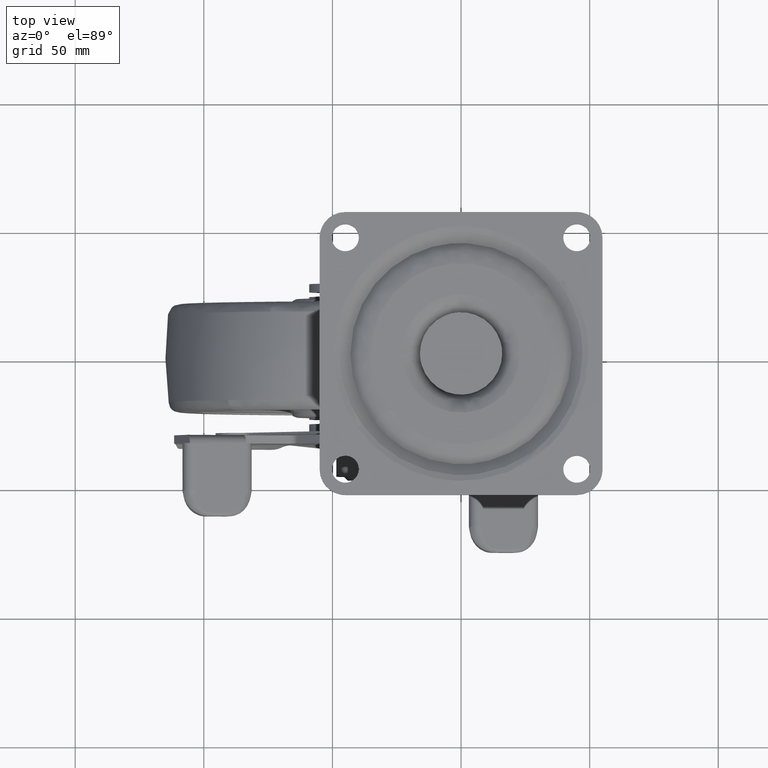
[diagram: clean part render]
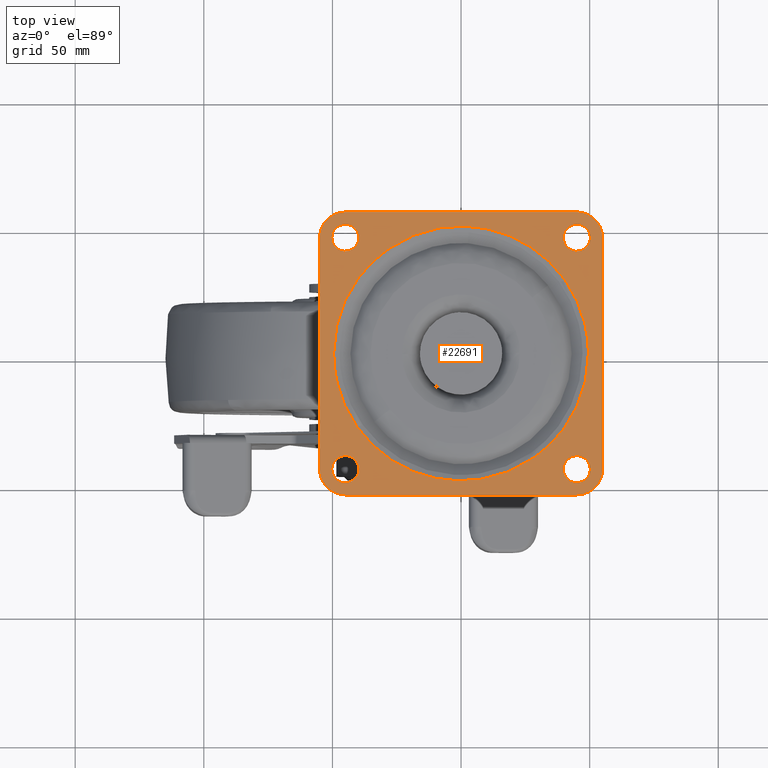
[diagram: same view with one face highlighted and labeled with its STEP entity id]
A machine part, top view. The second image highlights one B-rep face of the part: STEP entity #22691.
In plain terms, the highlighted face is a freeform B-spline surface patch.
Its self-contained STEP definition (entity closure, byte-faithful):
#21423=CARTESIAN_POINT('',(-45.320504832935832,39.759792308308313,-2.081668E-017));
#21424=VERTEX_POINT('',#21423);
#21430=CARTESIAN_POINT('',(-39.750000000000000,45.0,0.0));
#21431=VERTEX_POINT('',#21430);
#21432=CARTESIAN_POINT('',(-45.320504832935832,39.759792308308306,0.0));
#21433=CARTESIAN_POINT('',(-45.160402007507038,39.750000000000000,0.0));
#21434=CARTESIAN_POINT('',(-45.0,39.750000000000000,0.0));
#21435=CARTESIAN_POINT('',(-39.750000000000000,39.750000000000000,0.0));
#21436=CARTESIAN_POINT('',(-39.750000000000000,45.0,0.0));
#21444=(BOUNDED_CURVE()B_SPLINE_CURVE(2,(#21432,#21433,#21434,#21435,#21436),.UNSPECIFIED.,.F.,.U.)B_SPLINE_CURVE_WITH_KNOTS((3,2,3),(0.239332962229527,0.250000000000000,0.500000000000000),.UNSPECIFIED.)CURVE()GEOMETRIC_REPRESENTATION_ITEM()RATIONAL_B_SPLINE_CURVE((0.976072041646538,0.987502787888806,1.0,0.707106781186547,1.0))REPRESENTATION_ITEM(''));
#21445=EDGE_CURVE('',#21424,#21431,#21444,.T.);
#21447=CARTESIAN_POINT('',(-44.679495167064168,50.240207691691687,-2.081668E-017));
#21448=VERTEX_POINT('',#21447);
#21449=CARTESIAN_POINT('',(-39.750000000000000,45.0,0.0));
#21450=CARTESIAN_POINT('',(-39.749999999999993,49.938706850898129,0.0));
#21451=CARTESIAN_POINT('',(-44.679495167064168,50.240207691691687,0.0));
#21459=(BOUNDED_CURVE()B_SPLINE_CURVE(2,(#21449,#21450,#21451),.UNSPECIFIED.,.F.,.U.)B_SPLINE_CURVE_WITH_KNOTS((3,3),(0.500000000000000,0.739332962229527),.UNSPECIFIED.)CURVE()GEOMETRIC_REPRESENTATION_ITEM()RATIONAL_B_SPLINE_CURVE((1.0,0.719603993297741,0.976072041646538))REPRESENTATION_ITEM(''));
#21460=EDGE_CURVE('',#21431,#21448,#21459,.T.);
#21534=CARTESIAN_POINT('',(-50.249999999999993,45.0,0.0));
#21535=VERTEX_POINT('',#21534);
#21536=CARTESIAN_POINT('',(-44.679495167064168,50.240207691691687,0.0));
#21537=CARTESIAN_POINT('',(-44.839597992492962,50.249999999999993,0.0));
#21538=CARTESIAN_POINT('',(-45.0,50.249999999999993,0.0));
#21539=CARTESIAN_POINT('',(-50.249999999999986,50.249999999999986,0.0));
#21540=CARTESIAN_POINT('',(-50.249999999999993,45.0,0.0));
#21548=(BOUNDED_CURVE()B_SPLINE_CURVE(2,(#21536,#21537,#21538,#21539,#21540),.UNSPECIFIED.,.F.,.U.)B_SPLINE_CURVE_WITH_KNOTS((3,2,3),(0.739332962229527,0.750000000000000,1.0),.UNSPECIFIED.)CURVE()GEOMETRIC_REPRESENTATION_ITEM()RATIONAL_B_SPLINE_CURVE((0.976072041646538,0.987502787888806,1.0,0.707106781186547,1.0))REPRESENTATION_ITEM(''));
#21549=EDGE_CURVE('',#21448,#21535,#21548,.T.);
#21551=CARTESIAN_POINT('',(-50.249999999999993,45.0,0.0));
#21552=CARTESIAN_POINT('',(-50.249999999999993,40.061293149101857,0.0));
#21553=CARTESIAN_POINT('',(-45.320504832935804,39.759792308308299,0.0));
#21561=(BOUNDED_CURVE()B_SPLINE_CURVE(2,(#21551,#21552,#21553),.UNSPECIFIED.,.F.,.U.)B_SPLINE_CURVE_WITH_KNOTS((3,3),(0.0,0.239332962229527),.UNSPECIFIED.)CURVE()GEOMETRIC_REPRESENTATION_ITEM()RATIONAL_B_SPLINE_CURVE((1.0,0.719603993297741,0.976072041646539))REPRESENTATION_ITEM(''));
#21562=EDGE_CURVE('',#21535,#21424,#21561,.T.);
#21605=CARTESIAN_POINT('',(44.679495167064182,39.759792308308313,-2.081668E-017));
#21606=VERTEX_POINT('',#21605);
#21612=CARTESIAN_POINT('',(50.249999999999993,45.0,0.0));
#21613=VERTEX_POINT('',#21612);
#21614=CARTESIAN_POINT('',(44.679495167064175,39.759792308308306,0.0));
#21615=CARTESIAN_POINT('',(44.839597992492962,39.750000000000000,0.0));
#21616=CARTESIAN_POINT('',(45.0,39.750000000000000,0.0));
#21617=CARTESIAN_POINT('',(50.249999999999986,39.750000000000000,0.0));
#21618=CARTESIAN_POINT('',(50.249999999999993,45.0,0.0));
#21626=(BOUNDED_CURVE()B_SPLINE_CURVE(2,(#21614,#21615,#21616,#21617,#21618),.UNSPECIFIED.,.F.,.U.)B_SPLINE_CURVE_WITH_KNOTS((3,2,3),(0.239332962229527,0.250000000000000,0.500000000000000),.UNSPECIFIED.)CURVE()GEOMETRIC_REPRESENTATION_ITEM()RATIONAL_B_SPLINE_CURVE((0.976072041646538,0.987502787888806,1.0,0.707106781186547,1.0))REPRESENTATION_ITEM(''));
#21627=EDGE_CURVE('',#21606,#21613,#21626,.T.);
#21629=CARTESIAN_POINT('',(45.320504832935832,50.240207691691687,-2.081668E-017));
#21630=VERTEX_POINT('',#21629);
#21631=CARTESIAN_POINT('',(50.249999999999993,45.0,0.0));
#21632=CARTESIAN_POINT('',(50.249999999999993,49.938706850898129,0.0));
#21633=CARTESIAN_POINT('',(45.320504832935825,50.240207691691687,0.0));
#21641=(BOUNDED_CURVE()B_SPLINE_CURVE(2,(#21631,#21632,#21633),.UNSPECIFIED.,.F.,.U.)B_SPLINE_CURVE_WITH_KNOTS((3,3),(0.500000000000000,0.739332962229527),.UNSPECIFIED.)CURVE()GEOMETRIC_REPRESENTATION_ITEM()RATIONAL_B_SPLINE_CURVE((1.0,0.719603993297741,0.976072041646538))REPRESENTATION_ITEM(''));
#21642=EDGE_CURVE('',#21613,#21630,#21641,.T.);
#21716=CARTESIAN_POINT('',(39.750000000000000,45.0,0.0));
#21717=VERTEX_POINT('',#21716);
#21718=CARTESIAN_POINT('',(45.320504832935825,50.240207691691687,0.0));
#21719=CARTESIAN_POINT('',(45.160402007507038,50.249999999999993,0.0));
#21720=CARTESIAN_POINT('',(45.0,50.249999999999993,0.0));
#21721=CARTESIAN_POINT('',(39.750000000000000,50.249999999999986,0.0));
#21722=CARTESIAN_POINT('',(39.750000000000000,45.0,0.0));
#21730=(BOUNDED_CURVE()B_SPLINE_CURVE(2,(#21718,#21719,#21720,#21721,#21722),.UNSPECIFIED.,.F.,.U.)B_SPLINE_CURVE_WITH_KNOTS((3,2,3),(0.739332962229527,0.750000000000000,1.0),.UNSPECIFIED.)CURVE()GEOMETRIC_REPRESENTATION_ITEM()RATIONAL_B_SPLINE_CURVE((0.976072041646538,0.987502787888806,1.0,0.707106781186547,1.0))REPRESENTATION_ITEM(''));
#21731=EDGE_CURVE('',#21630,#21717,#21730,.T.);
#21733=CARTESIAN_POINT('',(39.750000000000000,45.0,0.0));
#21734=CARTESIAN_POINT('',(39.750000000000000,40.061293149101857,0.0));
#21735=CARTESIAN_POINT('',(44.679495167064175,39.759792308308299,0.0));
#21743=(BOUNDED_CURVE()B_SPLINE_CURVE(2,(#21733,#21734,#21735),.UNSPECIFIED.,.F.,.U.)B_SPLINE_CURVE_WITH_KNOTS((3,3),(0.0,0.239332962229527),.UNSPECIFIED.)CURVE()GEOMETRIC_REPRESENTATION_ITEM()RATIONAL_B_SPLINE_CURVE((1.0,0.719603993297741,0.976072041646539))REPRESENTATION_ITEM(''));
#21744=EDGE_CURVE('',#21717,#21606,#21743,.T.);
#21787=CARTESIAN_POINT('',(44.679495167064168,-50.240207691691687,-2.081668E-017));
#21788=VERTEX_POINT('',#21787);
#21794=CARTESIAN_POINT('',(50.249999999999993,-45.0,0.0));
#21795=VERTEX_POINT('',#21794);
#21796=CARTESIAN_POINT('',(44.679495167064175,-50.240207691691687,0.0));
#21797=CARTESIAN_POINT('',(44.839597992492962,-50.249999999999986,0.0));
#21798=CARTESIAN_POINT('',(45.0,-50.249999999999993,0.0));
#21799=CARTESIAN_POINT('',(50.249999999999986,-50.249999999999986,0.0));
#21800=CARTESIAN_POINT('',(50.249999999999993,-45.0,0.0));
#21808=(BOUNDED_CURVE()B_SPLINE_CURVE(2,(#21796,#21797,#21798,#21799,#21800),.UNSPECIFIED.,.F.,.U.)B_SPLINE_CURVE_WITH_KNOTS((3,2,3),(0.239332962229527,0.250000000000000,0.500000000000000),.UNSPECIFIED.)CURVE()GEOMETRIC_REPRESENTATION_ITEM()RATIONAL_B_SPLINE_CURVE((0.976072041646538,0.987502787888806,1.0,0.707106781186547,1.0))REPRESENTATION_ITEM(''));
#21809=EDGE_CURVE('',#21788,#21795,#21808,.T.);
#21811=CARTESIAN_POINT('',(45.320504832935832,-39.759792308308313,-2.081668E-017));
#21812=VERTEX_POINT('',#21811);
#21813=CARTESIAN_POINT('',(50.249999999999993,-45.0,0.0));
#21814=CARTESIAN_POINT('',(50.249999999999986,-40.061293149101857,0.0));
#21815=CARTESIAN_POINT('',(45.320504832935839,-39.759792308308306,0.0));
#21823=(BOUNDED_CURVE()B_SPLINE_CURVE(2,(#21813,#21814,#21815),.UNSPECIFIED.,.F.,.U.)B_SPLINE_CURVE_WITH_KNOTS((3,3),(0.500000000000000,0.739332962229527),.UNSPECIFIED.)CURVE()GEOMETRIC_REPRESENTATION_ITEM()RATIONAL_B_SPLINE_CURVE((1.0,0.719603993297742,0.976072041646538))REPRESENTATION_ITEM(''));
#21824=EDGE_CURVE('',#21795,#21812,#21823,.T.);
#21898=CARTESIAN_POINT('',(39.750000000000000,-45.0,0.0));
#21899=VERTEX_POINT('',#21898);
#21900=CARTESIAN_POINT('',(45.320504832935832,-39.759792308308306,0.0));
#21901=CARTESIAN_POINT('',(45.160402007507045,-39.750000000000007,0.0));
#21902=CARTESIAN_POINT('',(45.0,-39.750000000000000,0.0));
#21903=CARTESIAN_POINT('',(39.750000000000000,-39.750000000000000,0.0));
#21904=CARTESIAN_POINT('',(39.750000000000000,-45.0,0.0));
#21912=(BOUNDED_CURVE()B_SPLINE_CURVE(2,(#21900,#21901,#21902,#21903,#21904),.UNSPECIFIED.,.F.,.U.)B_SPLINE_CURVE_WITH_KNOTS((3,2,3),(0.739332962229527,0.750000000000000,1.0),.UNSPECIFIED.)CURVE()GEOMETRIC_REPRESENTATION_ITEM()RATIONAL_B_SPLINE_CURVE((0.976072041646538,0.987502787888806,1.0,0.707106781186547,1.0))REPRESENTATION_ITEM(''));
#21913=EDGE_CURVE('',#21812,#21899,#21912,.T.);
#21915=CARTESIAN_POINT('',(39.750000000000000,-45.0,0.0));
#21916=CARTESIAN_POINT('',(39.749999999999993,-49.938706850898129,0.0));
#21917=CARTESIAN_POINT('',(44.679495167064168,-50.240207691691687,0.0));
#21925=(BOUNDED_CURVE()B_SPLINE_CURVE(2,(#21915,#21916,#21917),.UNSPECIFIED.,.F.,.U.)B_SPLINE_CURVE_WITH_KNOTS((3,3),(0.0,0.239332962229527),.UNSPECIFIED.)CURVE()GEOMETRIC_REPRESENTATION_ITEM()RATIONAL_B_SPLINE_CURVE((1.0,0.719603993297741,0.976072041646538))REPRESENTATION_ITEM(''));
#21926=EDGE_CURVE('',#21899,#21788,#21925,.T.);
#21969=CARTESIAN_POINT('',(-45.320504832935832,-50.240207691691687,-2.081668E-017));
#21970=VERTEX_POINT('',#21969);
#21976=CARTESIAN_POINT('',(-39.750000000000000,-45.0,0.0));
#21977=VERTEX_POINT('',#21976);
#21978=CARTESIAN_POINT('',(-45.320504832935818,-50.240207691691680,0.0));
#21979=CARTESIAN_POINT('',(-45.160402007507031,-50.249999999999993,0.0));
#21980=CARTESIAN_POINT('',(-45.0,-50.249999999999993,0.0));
#21981=CARTESIAN_POINT('',(-39.750000000000000,-50.249999999999986,0.0));
#21982=CARTESIAN_POINT('',(-39.750000000000000,-45.0,0.0));
#21990=(BOUNDED_CURVE()B_SPLINE_CURVE(2,(#21978,#21979,#21980,#21981,#21982),.UNSPECIFIED.,.F.,.U.)B_SPLINE_CURVE_WITH_KNOTS((3,2,3),(0.239332962229528,0.250000000000000,0.500000000000000),.UNSPECIFIED.)CURVE()GEOMETRIC_REPRESENTATION_ITEM()RATIONAL_B_SPLINE_CURVE((0.976072041646539,0.987502787888807,1.0,0.707106781186547,1.0))REPRESENTATION_ITEM(''));
#21991=EDGE_CURVE('',#21970,#21977,#21990,.T.);
#21993=CARTESIAN_POINT('',(-44.679495167064168,-39.759792308308313,-2.081668E-017));
#21994=VERTEX_POINT('',#21993);
#21995=CARTESIAN_POINT('',(-39.750000000000000,-45.0,0.0));
#21996=CARTESIAN_POINT('',(-39.749999999999993,-40.061293149101864,0.0));
#21997=CARTESIAN_POINT('',(-44.679495167064168,-39.759792308308313,0.0));
#22005=(BOUNDED_CURVE()B_SPLINE_CURVE(2,(#21995,#21996,#21997),.UNSPECIFIED.,.F.,.U.)B_SPLINE_CURVE_WITH_KNOTS((3,3),(0.500000000000000,0.739332962229527),.UNSPECIFIED.)CURVE()GEOMETRIC_REPRESENTATION_ITEM()RATIONAL_B_SPLINE_CURVE((1.0,0.719603993297741,0.976072041646538))REPRESENTATION_ITEM(''));
#22006=EDGE_CURVE('',#21977,#21994,#22005,.T.);
#22080=CARTESIAN_POINT('',(-50.249999999999993,-45.0,0.0));
#22081=VERTEX_POINT('',#22080);
#22082=CARTESIAN_POINT('',(-44.679495167064168,-39.759792308308306,0.0));
#22083=CARTESIAN_POINT('',(-44.839597992492969,-39.750000000000007,0.0));
#22084=CARTESIAN_POINT('',(-45.0,-39.750000000000000,0.0));
#22085=CARTESIAN_POINT('',(-50.249999999999986,-39.750000000000000,0.0));
#22086=CARTESIAN_POINT('',(-50.249999999999993,-45.0,0.0));
#22094=(BOUNDED_CURVE()B_SPLINE_CURVE(2,(#22082,#22083,#22084,#22085,#22086),.UNSPECIFIED.,.F.,.U.)B_SPLINE_CURVE_WITH_KNOTS((3,2,3),(0.739332962229527,0.750000000000000,1.0),.UNSPECIFIED.)CURVE()GEOMETRIC_REPRESENTATION_ITEM()RATIONAL_B_SPLINE_CURVE((0.976072041646538,0.987502787888806,1.0,0.707106781186547,1.0))REPRESENTATION_ITEM(''));
#22095=EDGE_CURVE('',#21994,#22081,#22094,.T.);
#22097=CARTESIAN_POINT('',(-50.249999999999993,-45.0,0.0));
#22098=CARTESIAN_POINT('',(-50.250000000000007,-49.938706850898143,0.0));
#22099=CARTESIAN_POINT('',(-45.320504832935832,-50.240207691691694,0.0));
#22107=(BOUNDED_CURVE()B_SPLINE_CURVE(2,(#22097,#22098,#22099),.UNSPECIFIED.,.F.,.U.)B_SPLINE_CURVE_WITH_KNOTS((3,3),(0.0,0.239332962229527),.UNSPECIFIED.)CURVE()GEOMETRIC_REPRESENTATION_ITEM()RATIONAL_B_SPLINE_CURVE((1.0,0.719603993297741,0.976072041646538))REPRESENTATION_ITEM(''));
#22108=EDGE_CURVE('',#22081,#21970,#22107,.T.);
#22146=CARTESIAN_POINT('',(-28.604408186504639,40.429371069285978,-6.544722E-016));
#22147=VERTEX_POINT('',#22146);
#22161=CARTESIAN_POINT('',(-49.525207852676203,1.421085E-014,0.0));
#22162=VERTEX_POINT('',#22161);
#22163=CARTESIAN_POINT('',(-49.525207852676203,1.421085E-014,0.0));
#22164=CARTESIAN_POINT('',(-49.525207852406254,25.627580257778288,-3.272361E-016));
#22165=CARTESIAN_POINT('',(-28.604408186504635,40.429371069285978,-6.544722E-016));
#22173=(BOUNDED_CURVE()B_SPLINE_CURVE(2,(#22163,#22164,#22165),.UNSPECIFIED.,.F.,.U.)B_SPLINE_CURVE_WITH_KNOTS((3,3),(0.0,0.150659173411619),.UNSPECIFIED.)CURVE()GEOMETRIC_REPRESENTATION_ITEM()RATIONAL_B_SPLINE_CURVE((1.0,0.823491799022787,0.859724235322365))REPRESENTATION_ITEM(''));
#22174=EDGE_CURVE('',#22162,#22147,#22173,.T.);
#22176=CARTESIAN_POINT('',(28.604408186504639,-40.429371069285949,-5.949747E-016));
#22177=VERTEX_POINT('',#22176);
#22178=CARTESIAN_POINT('',(28.604408186504635,-40.429371069285949,-5.949747E-016));
#22179=CARTESIAN_POINT('',(15.748384105477886,-49.525207851975871,-5.460240E-016));
#22180=CARTESIAN_POINT('',(-4.096389E-010,-49.525207852097203,-4.514268E-016));
#22181=CARTESIAN_POINT('',(-49.525207852815896,-49.525207852478744,-1.539394E-016));
#22182=CARTESIAN_POINT('',(-49.525207852676203,1.421085E-014,0.0));
#22190=(BOUNDED_CURVE()B_SPLINE_CURVE(2,(#22178,#22179,#22180,#22181,#22182),.UNSPECIFIED.,.F.,.U.)B_SPLINE_CURVE_WITH_KNOTS((3,2,3),(0.650659173411619,0.750000000000000,1.0),.UNSPECIFIED.)CURVE()GEOMETRIC_REPRESENTATION_ITEM()RATIONAL_B_SPLINE_CURVE((0.859724235322365,0.883614982163760,1.0,0.707106781186547,1.0))REPRESENTATION_ITEM(''));
#22191=EDGE_CURVE('',#22177,#22162,#22190,.T.);
#22240=CARTESIAN_POINT('',(49.525207852676203,1.421085E-014,0.0));
#22241=VERTEX_POINT('',#22240);
#22242=CARTESIAN_POINT('',(49.525207852676203,1.421085E-014,0.0));
#22243=CARTESIAN_POINT('',(49.525207852406254,-25.627580257778249,-2.974874E-016));
#22244=CARTESIAN_POINT('',(28.604408186504635,-40.429371069285949,-5.949747E-016));
#22252=(BOUNDED_CURVE()B_SPLINE_CURVE(2,(#22242,#22243,#22244),.UNSPECIFIED.,.F.,.U.)B_SPLINE_CURVE_WITH_KNOTS((3,3),(0.500000000000000,0.650659173411619),.UNSPECIFIED.)CURVE()GEOMETRIC_REPRESENTATION_ITEM()RATIONAL_B_SPLINE_CURVE((1.0,0.823491799022787,0.859724235322365))REPRESENTATION_ITEM(''));
#22253=EDGE_CURVE('',#22241,#22177,#22252,.T.);
#22255=CARTESIAN_POINT('',(-28.604408186504635,40.429371069285978,-6.544722E-016));
#22256=CARTESIAN_POINT('',(-15.748384105477896,49.525207851975914,-6.006264E-016));
#22257=CARTESIAN_POINT('',(4.096389E-010,49.525207852097232,-4.965695E-016));
#22258=CARTESIAN_POINT('',(49.525207852815896,49.525207852478786,-1.693334E-016));
#22259=CARTESIAN_POINT('',(49.525207852676203,1.421085E-014,0.0));
#22267=(BOUNDED_CURVE()B_SPLINE_CURVE(2,(#22255,#22256,#22257,#22258,#22259),.UNSPECIFIED.,.F.,.U.)B_SPLINE_CURVE_WITH_KNOTS((3,2,3),(0.150659173411619,0.250000000000000,0.500000000000000),.UNSPECIFIED.)CURVE()GEOMETRIC_REPRESENTATION_ITEM()RATIONAL_B_SPLINE_CURVE((0.859724235322365,0.883614982163760,1.0,0.707106781186547,1.0))REPRESENTATION_ITEM(''));
#22268=EDGE_CURVE('',#22147,#22241,#22267,.T.);
#22407=CARTESIAN_POINT('',(55.0,-45.0,0.0));
#22408=VERTEX_POINT('',#22407);
#22409=CARTESIAN_POINT('',(55.0,45.0,0.0));
#22410=VERTEX_POINT('',#22409);
#22411=CARTESIAN_POINT('',(55.0,-45.0,0.0));
#22412=CARTESIAN_POINT('',(55.0,45.0,0.0));
#22413=QUASI_UNIFORM_CURVE('',1,(#22411,#22412),.UNSPECIFIED.,.F.,.U.);
#22414=EDGE_CURVE('',#22408,#22410,#22413,.T.);
#22444=CARTESIAN_POINT('',(45.0,-55.0,0.0));
#22445=VERTEX_POINT('',#22444);
#22446=CARTESIAN_POINT('',(45.0,-55.0,0.0));
#22447=CARTESIAN_POINT('',(55.000000000000007,-55.000000000000007,0.0));
#22448=CARTESIAN_POINT('',(55.0,-45.0,0.0));
#22456=(BOUNDED_CURVE()B_SPLINE_CURVE(2,(#22446,#22447,#22448),.UNSPECIFIED.,.F.,.U.)CURVE()GEOMETRIC_REPRESENTATION_ITEM()QUASI_UNIFORM_CURVE()RATIONAL_B_SPLINE_CURVE((1.0,0.707106781186548,1.0))REPRESENTATION_ITEM(''));
#22457=EDGE_CURVE('',#22445,#22408,#22456,.T.);
#22474=CARTESIAN_POINT('',(-45.0,-55.0,0.0));
#22475=VERTEX_POINT('',#22474);
#22476=CARTESIAN_POINT('',(-45.0,-55.0,0.0));
#22477=CARTESIAN_POINT('',(45.0,-55.0,0.0));
#22478=QUASI_UNIFORM_CURVE('',1,(#22476,#22477),.UNSPECIFIED.,.F.,.U.);
#22479=EDGE_CURVE('',#22475,#22445,#22478,.T.);
#22505=CARTESIAN_POINT('',(-55.0,-45.0,0.0));
#22506=VERTEX_POINT('',#22505);
#22507=CARTESIAN_POINT('',(-55.0,-45.0,0.0));
#22508=CARTESIAN_POINT('',(-55.000000000000007,-55.000000000000007,0.0));
#22509=CARTESIAN_POINT('',(-45.0,-55.0,0.0));
#22517=(BOUNDED_CURVE()B_SPLINE_CURVE(2,(#22507,#22508,#22509),.UNSPECIFIED.,.F.,.U.)CURVE()GEOMETRIC_REPRESENTATION_ITEM()QUASI_UNIFORM_CURVE()RATIONAL_B_SPLINE_CURVE((1.0,0.707106781186548,1.0))REPRESENTATION_ITEM(''));
#22518=EDGE_CURVE('',#22506,#22475,#22517,.T.);
#22535=CARTESIAN_POINT('',(-55.0,45.0,0.0));
#22536=VERTEX_POINT('',#22535);
#22537=CARTESIAN_POINT('',(-55.0,45.0,0.0));
#22538=CARTESIAN_POINT('',(-55.0,-45.0,0.0));
#22539=QUASI_UNIFORM_CURVE('',1,(#22537,#22538),.UNSPECIFIED.,.F.,.U.);
#22540=EDGE_CURVE('',#22536,#22506,#22539,.T.);
#22566=CARTESIAN_POINT('',(-45.0,55.0,0.0));
#22567=VERTEX_POINT('',#22566);
#22568=CARTESIAN_POINT('',(-45.0,55.0,0.0));
#22569=CARTESIAN_POINT('',(-55.000000000000007,55.000000000000007,0.0));
#22570=CARTESIAN_POINT('',(-55.0,45.0,0.0));
#22578=(BOUNDED_CURVE()B_SPLINE_CURVE(2,(#22568,#22569,#22570),.UNSPECIFIED.,.F.,.U.)CURVE()GEOMETRIC_REPRESENTATION_ITEM()QUASI_UNIFORM_CURVE()RATIONAL_B_SPLINE_CURVE((1.0,0.707106781186548,1.0))REPRESENTATION_ITEM(''));
#22579=EDGE_CURVE('',#22567,#22536,#22578,.T.);
#22596=CARTESIAN_POINT('',(45.0,55.0,0.0));
#22597=VERTEX_POINT('',#22596);
#22598=CARTESIAN_POINT('',(45.0,55.0,0.0));
#22599=CARTESIAN_POINT('',(-45.0,55.0,0.0));
#22600=QUASI_UNIFORM_CURVE('',1,(#22598,#22599),.UNSPECIFIED.,.F.,.U.);
#22601=EDGE_CURVE('',#22597,#22567,#22600,.T.);
#22627=CARTESIAN_POINT('',(55.0,45.0,0.0));
#22628=CARTESIAN_POINT('',(55.000000000000007,55.000000000000007,0.0));
#22629=CARTESIAN_POINT('',(45.0,55.0,0.0));
#22637=(BOUNDED_CURVE()B_SPLINE_CURVE(2,(#22627,#22628,#22629),.UNSPECIFIED.,.F.,.U.)CURVE()GEOMETRIC_REPRESENTATION_ITEM()QUASI_UNIFORM_CURVE()RATIONAL_B_SPLINE_CURVE((1.0,0.707106781186548,1.0))REPRESENTATION_ITEM(''));
#22638=EDGE_CURVE('',#22410,#22597,#22637,.T.);
#22646=CARTESIAN_POINT('',(-60.494499786798663,60.494499786798663,0.0));
#22647=CARTESIAN_POINT('',(60.494502737228572,60.494499786798663,0.0));
#22648=CARTESIAN_POINT('',(-60.494499786798663,-60.494502737228572,0.0));
#22649=CARTESIAN_POINT('',(60.494502737228572,-60.494502737228572,0.0));
#22650=B_SPLINE_SURFACE_WITH_KNOTS('',1,1,((#22646,#22648),(#22647,#22649)),.UNSPECIFIED.,.F.,.F.,.U.,(2,2),(2,2),(0.0,120.989002524027200),(0.0,120.989002524027200),.UNSPECIFIED.);
#22651=ORIENTED_EDGE('',*,*,#22638,.T.);
#22652=ORIENTED_EDGE('',*,*,#22601,.T.);
#22653=ORIENTED_EDGE('',*,*,#22579,.T.);
#22654=ORIENTED_EDGE('',*,*,#22540,.T.);
#22655=ORIENTED_EDGE('',*,*,#22518,.T.);
#22656=ORIENTED_EDGE('',*,*,#22479,.T.);
#22657=ORIENTED_EDGE('',*,*,#22457,.T.);
#22658=ORIENTED_EDGE('',*,*,#22414,.T.);
#22659=EDGE_LOOP('',(#22651,#22652,#22653,#22654,#22655,#22656,#22657,#22658));
#22660=FACE_OUTER_BOUND('',#22659,.T.);
#22661=ORIENTED_EDGE('',*,*,#22174,.T.);
#22662=ORIENTED_EDGE('',*,*,#22268,.T.);
#22663=ORIENTED_EDGE('',*,*,#22253,.T.);
#22664=ORIENTED_EDGE('',*,*,#22191,.T.);
#22665=EDGE_LOOP('',(#22661,#22662,#22663,#22664));
#22666=FACE_BOUND('',#22665,.T.);
#22667=ORIENTED_EDGE('',*,*,#22006,.F.);
#22668=ORIENTED_EDGE('',*,*,#21991,.F.);
#22669=ORIENTED_EDGE('',*,*,#22108,.F.);
#22670=ORIENTED_EDGE('',*,*,#22095,.F.);
#22671=EDGE_LOOP('',(#22667,#22668,#22669,#22670));
#22672=FACE_BOUND('',#22671,.T.);
#22673=ORIENTED_EDGE('',*,*,#21824,.F.);
#22674=ORIENTED_EDGE('',*,*,#21809,.F.);
#22675=ORIENTED_EDGE('',*,*,#21926,.F.);
#22676=ORIENTED_EDGE('',*,*,#21913,.F.);
#22677=EDGE_LOOP('',(#22673,#22674,#22675,#22676));
#22678=FACE_BOUND('',#22677,.T.);
#22679=ORIENTED_EDGE('',*,*,#21642,.F.);
#22680=ORIENTED_EDGE('',*,*,#21627,.F.);
#22681=ORIENTED_EDGE('',*,*,#21744,.F.);
#22682=ORIENTED_EDGE('',*,*,#21731,.F.);
#22683=EDGE_LOOP('',(#22679,#22680,#22681,#22682));
#22684=FACE_BOUND('',#22683,.T.);
#22685=ORIENTED_EDGE('',*,*,#21460,.F.);
#22686=ORIENTED_EDGE('',*,*,#21445,.F.);
#22687=ORIENTED_EDGE('',*,*,#21562,.F.);
#22688=ORIENTED_EDGE('',*,*,#21549,.F.);
#22689=EDGE_LOOP('',(#22685,#22686,#22687,#22688));
#22690=FACE_BOUND('',#22689,.T.);
#22691=ADVANCED_FACE('',(#22660,#22666,#22672,#22678,#22684,#22690),#22650,.F.);